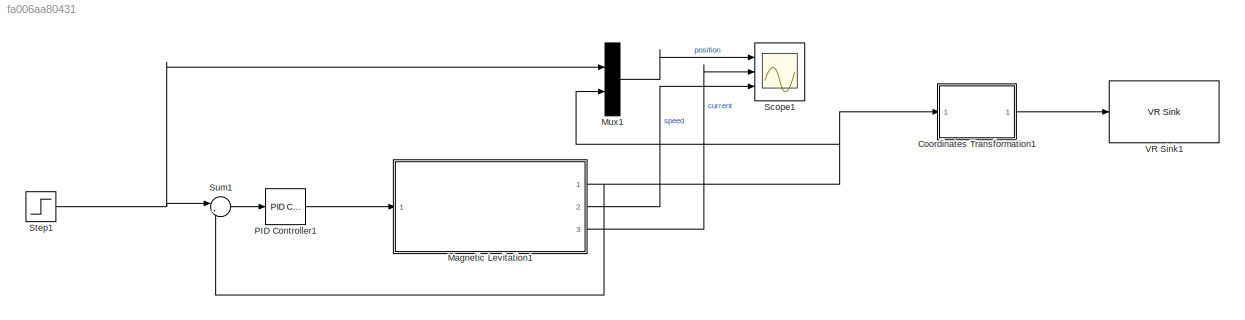
MODEL slx_fa006aa80431
KIND model
CONFIG AbsTol = auto
CONFIG EnableMultiTasking = off
CONFIG FixedStep = auto
CONFIG MaxStep = auto
CONFIG MinStep = auto
CONFIG RelTol = 1e-3
CONFIG SampleTimeConstraint = Unconstrained
CONFIG SolverName = VariableStepAuto
CONFIG StartTime = 0.0
CONFIG StopTime = 5
WORKSPACE source: mxarray member
WORKSPACE M: Simulink.Parameter (value not decoded)
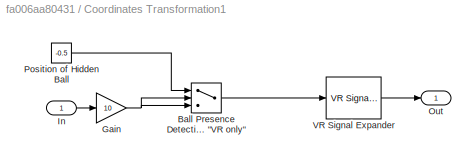
BLOCK [SubSystem] Coordinates Transformation1
  Ports = [1, 1]
  RequestExecContextInheritance = off
BLOCK [Switch] Coordinates Transformation1/Ball Presence Detection Value > Threshold = Ball Not Present 1 for "VR only"
  SaturateOnIntegerOverflow = off
  Threshold = 1
BLOCK [Gain] Coordinates Transformation1/Gain
  Gain = 10
BLOCK [Inport] Coordinates Transformation1/In
BLOCK [Outport] Coordinates Transformation1/Out
  VectorParamsAs1DForOutWhenUnconnected = off
BLOCK [Constant] Coordinates Transformation1/Position of Hidden Ball
  Value = -0.5
BLOCK [Reference] Coordinates Transformation1/VR Signal Expander  REF=vrlib/VR Signal Expander
  Ports = [1, 1]
  SourceBlock = vrlib/VR Signal Expander
  SourceProductBaseCode = VR
  SourceType = VR Signal Expander
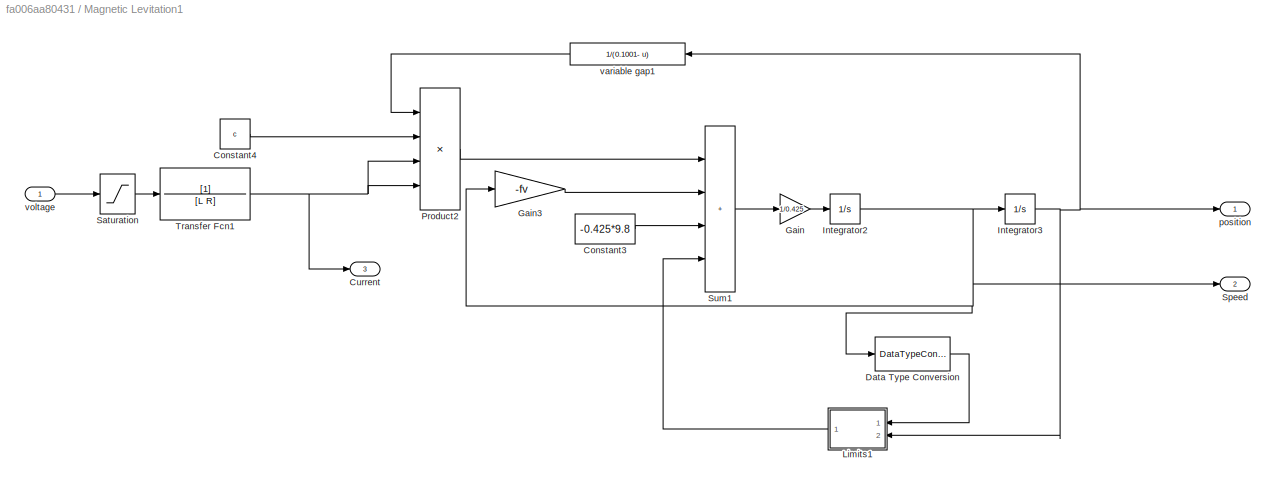
BLOCK [SubSystem] Magnetic Levitation1
  Ports = [1, 3]
  RequestExecContextInheritance = off
BLOCK [Constant] Magnetic Levitation1/Constant3
  Value = -0.425*9.8
BLOCK [Constant] Magnetic Levitation1/Constant4
  Value = c
BLOCK [Outport] Magnetic Levitation1/Current
  Port = 3
  VectorParamsAs1DForOutWhenUnconnected = off
BLOCK [DataTypeConversion] Magnetic Levitation1/Data Type Conversion
  OutDataTypeStr = boolean
  RndMeth = Floor
  SaturateOnIntegerOverflow = off
BLOCK [Gain] Magnetic Levitation1/Gain
  Gain = 1/0.425
BLOCK [Gain] Magnetic Levitation1/Gain3
  Gain = -fv
BLOCK [Integrator] Magnetic Levitation1/Integrator2
  LowerSaturationLimit = 0
  Ports = [1, 1]
BLOCK [Integrator] Magnetic Levitation1/Integrator3
  InitialCondition = 0.0001
  LimitOutput = on
  LowerSaturationLimit = 0
  Ports = [1, 1]
  UpperSaturationLimit = 0.1
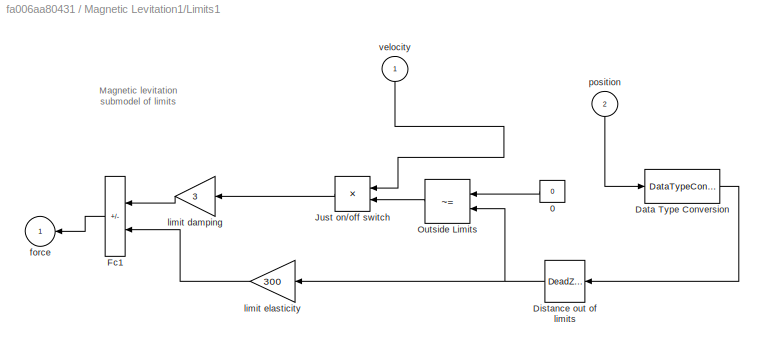
BLOCK [SubSystem] Magnetic Levitation1/Limits1
  Ports = [2, 1]
  RequestExecContextInheritance = off
  ShowPortLabels = none
BLOCK [Constant] Magnetic Levitation1/Limits1/0
  Value = 0
BLOCK [DataTypeConversion] Magnetic Levitation1/Limits1/Data Type Conversion
  OutDataTypeStr = double
  RndMeth = Floor
  SaturateOnIntegerOverflow = off
BLOCK [DeadZone] Magnetic Levitation1/Limits1/Distance out of limits
  LowerValue = 0.0002
  UpperValue = 0.0998
  ZeroCross = off
BLOCK [Sum] Magnetic Levitation1/Limits1/Fc1
  IconShape = rectangular
  InputSameDT = on
  Inputs = --
  OutDataTypeStr = Inherit: Same as first input
  Ports = [2, 1]
  SaturateOnIntegerOverflow = on
BLOCK [Product] Magnetic Levitation1/Limits1/Just on//off switch 
  InputSameDT = on
  OutDataTypeStr = double
  Ports = [2, 1]
  SaturateOnIntegerOverflow = on
BLOCK [RelationalOperator] Magnetic Levitation1/Limits1/Outside Limits
  Operator = ~=
  Ports = [2, 1]
BLOCK [Outport] Magnetic Levitation1/Limits1/force
  VectorParamsAs1DForOutWhenUnconnected = off
BLOCK [Gain] Magnetic Levitation1/Limits1/limit damping
  Gain = 3
  OutDataTypeStr = double
  ParamDataTypeStr = Inherit: Same as input
  SaturateOnIntegerOverflow = on
BLOCK [Gain] Magnetic Levitation1/Limits1/limit elasticity
  Gain = 300
  OutDataTypeStr = double
  ParamDataTypeStr = Inherit: Same as input
  SaturateOnIntegerOverflow = on
BLOCK [Inport] Magnetic Levitation1/Limits1/position
  NameLocation = right
  Port = 2
BLOCK [Inport] Magnetic Levitation1/Limits1/velocity
  NameLocation = right
BLOCK [Product] Magnetic Levitation1/Product2
  Inputs = 4
  Ports = [4, 1]
BLOCK [Saturate] Magnetic Levitation1/Saturation
  LowerLimit = 0
  UpperLimit = 200
  ZeroCross = off
BLOCK [Outport] Magnetic Levitation1/Speed
  Port = 2
  VectorParamsAs1DForOutWhenUnconnected = off
BLOCK [Sum] Magnetic Levitation1/Sum1
  IconShape = rectangular
  Inputs = ++++
  Ports = [4, 1]
BLOCK [TransferFcn] Magnetic Levitation1/Transfer Fcn1
  Denominator = [L R]
BLOCK [Outport] Magnetic Levitation1/position 
  VectorParamsAs1DForOutWhenUnconnected = off
BLOCK [Fcn] Magnetic Levitation1/variable gap1
  Expr = 1/(0.1001- u)
BLOCK [Inport] Magnetic Levitation1/voltage
BLOCK [Mux] Mux1
  DisplayOption = bar
  Inputs = 2
  Ports = [2, 1]
BLOCK [Reference] PID Controller1  REF=slpidlib/PID Controller
  Ports = [1, 1]
  SourceBlock = slpidlib/PID Controller
  SourceProductBaseCode = SL
  SourceType = PID 1dof
BLOCK [Scope] Scope1
  Floating = off
  NumInputPorts = 3
  Ports = [3]
  ScopeSpecificationString = Simulink.scopes.TimeScopeBlockCfg('CurrentConfiguration', extmgr.ConfigurationSet(extmgr.Configuration('Core','General UI',true),extmgr.Configuration('Core','Source UI',true),extmgr.Configuration('Sources','WiredSimulink',true,'DataLoggingVariableName','ScopeData1'),extmgr.Configuration('Visuals','Time Domain',true,'SerializedDisplays',{struct('MinYLimReal','-0.04806','MaxYLimReal','1.69452','YLab...<+2940ch>
BLOCK [Step] Step1
  After = 0.06
  SampleTime = 0
  Time = 0
BLOCK [Sum] Sum1
  Inputs = |+-
  Ports = [2, 1]
BLOCK [Reference] VR Sink1  REF=vrlib/VR Sink
  InstantiateOnLoad = on
  Ports = [1]
  SourceBlock = vrlib/VR Sink
  SourceProductBaseCode = VR
  SourceType = Virtual Reality Sink
ANNOTATION Magnetic Levitation1/Limits1: Magnetic levitation submodel of limits
LINE Coordinates Transformation1/Ball Presence Detection Value > Threshold = Ball Not Present 1 for "VR only":1 -> Coordinates Transformation1/VR Signal Expander:1
NET Coordinates Transformation1/Gain:1 -> Coordinates Transformation1/Ball Presence Detection Value > Threshold = Ball Not Present 1 for "VR only":2, Coordinates Transformation1/Ball Presence Detection Value > Threshold = Ball Not Present 1 for "VR only":3
LINE Coordinates Transformation1/In:1 -> Coordinates Transformation1/Gain:1
LINE Coordinates Transformation1/Position of Hidden Ball:1 -> Coordinates Transformation1/Ball Presence Detection Value > Threshold = Ball Not Present 1 for "VR only":1
LINE Coordinates Transformation1/VR Signal Expander:1 -> Coordinates Transformation1/Out:1
LINE Coordinates Transformation1:1 -> VR Sink1:1
LINE Magnetic Levitation1/Constant3:1 -> Magnetic Levitation1/Sum1:3
LINE Magnetic Levitation1/Constant4:1 -> Magnetic Levitation1/Product2:2
LINE Magnetic Levitation1/Data Type Conversion:1 -> Magnetic Levitation1/Limits1:1
LINE Magnetic Levitation1/Gain3:1 -> Magnetic Levitation1/Sum1:2
LINE Magnetic Levitation1/Gain:1 -> Magnetic Levitation1/Integrator2:1
NET Magnetic Levitation1/Integrator2:1 -> Magnetic Levitation1/Data Type Conversion:1, Magnetic Levitation1/Gain3:1, Magnetic Levitation1/Integrator3:1, Magnetic Levitation1/Speed:1
NET Magnetic Levitation1/Integrator3:1 -> Magnetic Levitation1/Limits1:2, Magnetic Levitation1/position :1, Magnetic Levitation1/variable gap1:1
LINE Magnetic Levitation1/Limits1/0:1 -> Magnetic Levitation1/Limits1/Outside Limits:1
LINE Magnetic Levitation1/Limits1/Data Type Conversion:1 -> Magnetic Levitation1/Limits1/Distance out of limits:1
NET Magnetic Levitation1/Limits1/Distance out of limits:1 -> Magnetic Levitation1/Limits1/Outside Limits:2, Magnetic Levitation1/Limits1/limit elasticity:1
LINE Magnetic Levitation1/Limits1/Fc1:1 -> Magnetic Levitation1/Limits1/force:1
LINE Magnetic Levitation1/Limits1/Just on//off switch :1 -> Magnetic Levitation1/Limits1/limit damping:1
LINE Magnetic Levitation1/Limits1/Outside Limits:1 -> Magnetic Levitation1/Limits1/Just on//off switch :2
LINE Magnetic Levitation1/Limits1/limit damping:1 -> Magnetic Levitation1/Limits1/Fc1:1
LINE Magnetic Levitation1/Limits1/limit elasticity:1 -> Magnetic Levitation1/Limits1/Fc1:2
LINE Magnetic Levitation1/Limits1/position:1 -> Magnetic Levitation1/Limits1/Data Type Conversion:1
LINE Magnetic Levitation1/Limits1/velocity:1 -> Magnetic Levitation1/Limits1/Just on//off switch :1
LINE Magnetic Levitation1/Limits1:1 -> Magnetic Levitation1/Sum1:4
LINE Magnetic Levitation1/Product2:1 -> Magnetic Levitation1/Sum1:1
LINE Magnetic Levitation1/Saturation:1 -> Magnetic Levitation1/Transfer Fcn1:1
LINE Magnetic Levitation1/Sum1:1 -> Magnetic Levitation1/Gain:1
NET Magnetic Levitation1/Transfer Fcn1:1 -> Magnetic Levitation1/Current:1, Magnetic Levitation1/Product2:3, Magnetic Levitation1/Product2:4
LINE Magnetic Levitation1/variable gap1:1 -> Magnetic Levitation1/Product2:1
LINE Magnetic Levitation1/voltage:1 -> Magnetic Levitation1/Saturation:1
NET Magnetic Levitation1:1 -> Coordinates Transformation1:1, Mux1:2, Sum1:2
LINE Magnetic Levitation1:2 -> Scope1:3
LINE Magnetic Levitation1:3 -> Scope1:2
LINE Mux1:1 -> Scope1:1
LINE PID Controller1:1 -> Magnetic Levitation1:1
NET Step1:1 -> Mux1:1, Sum1:1
LINE Sum1:1 -> PID Controller1:1
note: NET lines group one-source signal fan-out (src -> all destinations, sorted); 1:1 wires keep LINE
